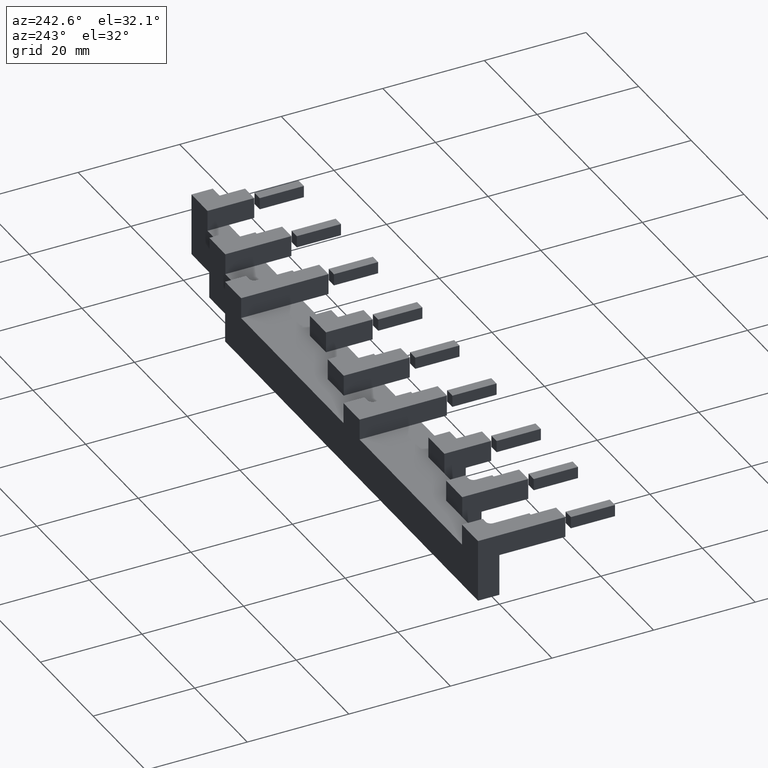
[diagram: clean part render]
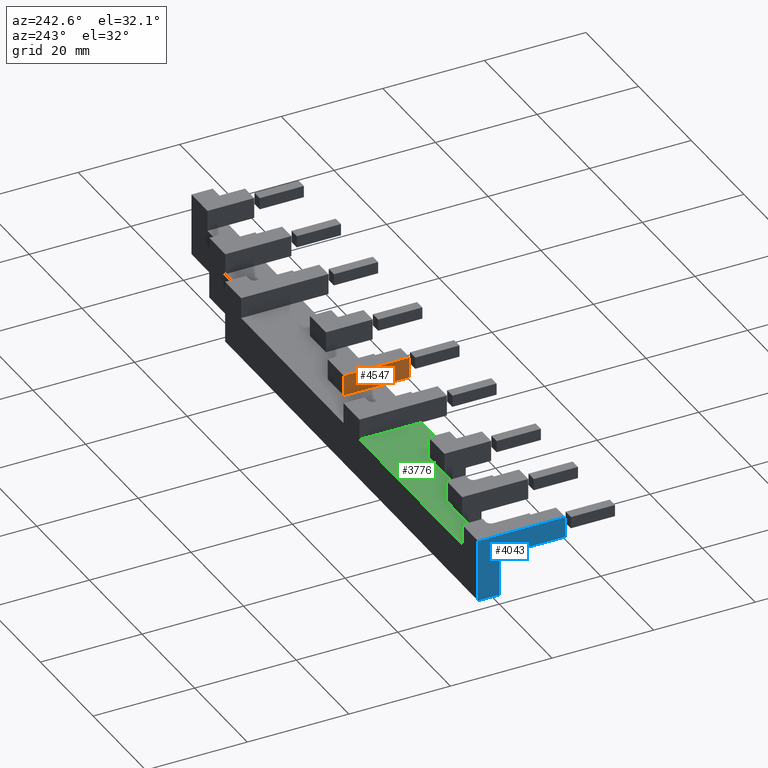
[diagram: same view with three faces highlighted in distinct colors, each labeled with its STEP entity id]
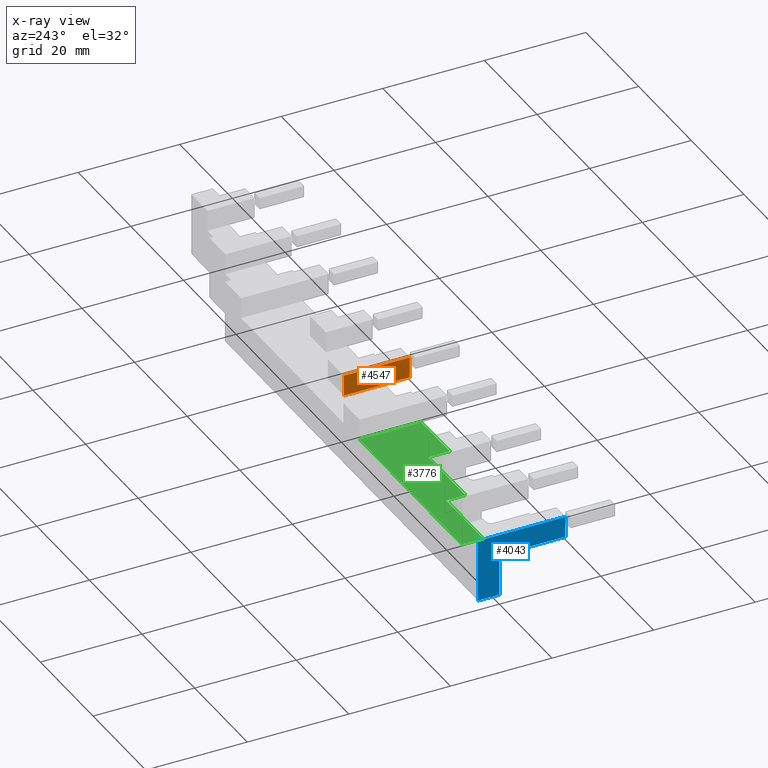
[diagram: x-ray of the same camera — body ghosted, the three highlighted faces saturated]
A machine part, auxiliary view with three faces highlighted in distinct colors.
The next image is the same camera in x-ray (body ghosted, the three faces saturated) — at least one of them is partly hidden behind the body in this view.
Their STEP definitions:

[orange] entity #4547 — the highlighted planar face has unit normal (-1, 0, 0).
#3533=CARTESIAN_POINT('',(59.099999999999895,-7.99999999999149,103.9999999999915));
#3534=VERTEX_POINT('',#3533);
#3541=CARTESIAN_POINT('',(59.099999999999795,7.815970E-013,103.9999999999915));
#3542=VERTEX_POINT('',#3541);
#3543=CARTESIAN_POINT('',(59.099999999999795,7.815970E-013,103.9999999999915));
#3544=DIRECTION('',(0.0,-1.0,0.0));
#3545=VECTOR('',#3544,7.999999999992271);
#3546=LINE('',#3543,#3545);
#3547=EDGE_CURVE('',#3542,#3534,#3546,.T.);
#4492=CARTESIAN_POINT('',(59.100000000000023,-12.999999999991037,108.0999999999915));
#4493=VERTEX_POINT('',#4492);
#4500=CARTESIAN_POINT('',(59.099999999999966,-12.999999999991037,103.9999999999915));
#4501=VERTEX_POINT('',#4500);
#4502=CARTESIAN_POINT('',(59.099999999999966,-12.999999999991037,103.9999999999915));
#4503=DIRECTION('',(0.0,0.0,1.0));
#4504=VECTOR('',#4503,4.099999999999994);
#4505=LINE('',#4502,#4504);
#4506=EDGE_CURVE('',#4501,#4493,#4505,.T.);
#4518=CARTESIAN_POINT('',(59.099999999999966,-12.999999999991037,103.9999999999915));
#4519=DIRECTION('',(-1.0,0.0,0.0));
#4520=DIRECTION('',(0.0,0.0,1.0));
#4521=AXIS2_PLACEMENT_3D('',#4518,#4519,#4520);
#4522=PLANE('',#4521);
#4523=CARTESIAN_POINT('',(59.099999999999852,7.815970E-013,108.0999999999915));
#4524=VERTEX_POINT('',#4523);
#4525=CARTESIAN_POINT('',(59.100000000000023,-12.999999999991037,108.0999999999915));
#4526=DIRECTION('',(0.0,1.0,0.0));
#4527=VECTOR('',#4526,12.999999999991818);
#4528=LINE('',#4525,#4527);
#4529=EDGE_CURVE('',#4493,#4524,#4528,.T.);
#4530=ORIENTED_EDGE('',*,*,#4529,.T.);
#4531=CARTESIAN_POINT('',(59.099999999999795,7.815970E-013,103.9999999999915));
#4532=DIRECTION('',(0.0,0.0,1.0));
#4533=VECTOR('',#4532,4.099999999999994);
#4534=LINE('',#4531,#4533);
#4535=EDGE_CURVE('',#3542,#4524,#4534,.T.);
#4536=ORIENTED_EDGE('',*,*,#4535,.F.);
#4537=ORIENTED_EDGE('',*,*,#3547,.T.);
#4538=CARTESIAN_POINT('',(59.099999999999895,-7.99999999999149,103.9999999999915));
#4539=DIRECTION('',(0.0,-1.0,0.0));
#4540=VECTOR('',#4539,4.999999999999547);
#4541=LINE('',#4538,#4540);
#4542=EDGE_CURVE('',#3534,#4501,#4541,.T.);
#4543=ORIENTED_EDGE('',*,*,#4542,.T.);
#4544=ORIENTED_EDGE('',*,*,#4506,.T.);
#4545=EDGE_LOOP('',(#4530,#4536,#4537,#4543,#4544));
#4546=FACE_OUTER_BOUND('',#4545,.T.);
#4547=ADVANCED_FACE('',(#4546),#4522,.T.);

[blue] entity #4043 — the highlighted planar face has unit normal (-1, 0, 0).
#3782=CARTESIAN_POINT('',(1.079197E-013,1.421085E-014,103.99999999999226));
#3783=VERTEX_POINT('',#3782);
#3784=CARTESIAN_POINT('',(-2.019484E-028,1.421085E-014,95.799999999992252));
#3785=VERTEX_POINT('',#3784);
#3786=CARTESIAN_POINT('',(1.079197E-013,1.436810E-014,103.99999999999227));
#3787=DIRECTION('',(0.0,0.0,-1.0));
#3788=VECTOR('',#3787,8.200000000000017);
#3789=LINE('',#3786,#3788);
#3790=EDGE_CURVE('',#3783,#3785,#3789,.T.);
#3822=CARTESIAN_POINT('',(-5.403378E-014,4.200000000007777,95.799999999992252));
#3823=VERTEX_POINT('',#3822);
#3824=CARTESIAN_POINT('',(-2.145702E-028,1.421085E-014,95.799999999992238));
#3825=DIRECTION('',(0.0,1.0,0.0));
#3826=VECTOR('',#3825,4.200000000007763);
#3827=LINE('',#3824,#3826);
#3828=EDGE_CURVE('',#3785,#3823,#3827,.T.);
#3987=CARTESIAN_POINT('',(1.017533E-013,-12.999999999991802,108.09999999999228));
#3988=VERTEX_POINT('',#3987);
#3995=CARTESIAN_POINT('',(4.779343E-014,-12.999999999991802,103.99999999999227));
#3996=VERTEX_POINT('',#3995);
#3997=CARTESIAN_POINT('',(4.779343E-014,-12.999999999991802,103.99999999999227));
#3998=DIRECTION('',(0.0,0.0,1.0));
#3999=VECTOR('',#3998,4.099999999999994);
#4000=LINE('',#3997,#3999);
#4001=EDGE_CURVE('',#3996,#3988,#4000,.T.);
#4013=CARTESIAN_POINT('',(4.779343E-014,-12.999999999991802,103.99999999999227));
#4014=DIRECTION('',(-1.0,0.0,0.0));
#4015=DIRECTION('',(0.0,0.0,1.0));
#4016=AXIS2_PLACEMENT_3D('',#4013,#4014,#4015);
#4017=PLANE('',#4016);
#4018=CARTESIAN_POINT('',(1.078457E-013,4.200000000007791,108.09999999999226));
#4019=VERTEX_POINT('',#4018);
#4020=CARTESIAN_POINT('',(1.017533E-013,-12.999999999991804,108.09999999999226));
#4021=DIRECTION('',(0.0,1.0,0.0));
#4022=VECTOR('',#4021,17.199999999999594);
#4023=LINE('',#4020,#4022);
#4024=EDGE_CURVE('',#3988,#4019,#4023,.T.);
#4025=ORIENTED_EDGE('',*,*,#4024,.T.);
#4026=CARTESIAN_POINT('',(-5.403378E-014,4.200000000007791,95.799999999992252));
#4027=DIRECTION('',(0.0,0.0,1.0));
#4028=VECTOR('',#4027,12.299999999999997);
#4029=LINE('',#4026,#4028);
#4030=EDGE_CURVE('',#3823,#4019,#4029,.T.);
#4031=ORIENTED_EDGE('',*,*,#4030,.F.);
#4032=ORIENTED_EDGE('',*,*,#3828,.F.);
#4033=ORIENTED_EDGE('',*,*,#3790,.F.);
#4034=CARTESIAN_POINT('',(5.239821E-014,1.421085E-014,103.99999999999226));
#4035=DIRECTION('',(0.0,-1.0,0.0));
#4036=VECTOR('',#4035,12.999999999991818);
#4037=LINE('',#4034,#4036);
#4038=EDGE_CURVE('',#3783,#3996,#4037,.T.);
#4039=ORIENTED_EDGE('',*,*,#4038,.T.);
#4040=ORIENTED_EDGE('',*,*,#4001,.T.);
#4041=EDGE_LOOP('',(#4025,#4031,#4032,#4033,#4039,#4040));
#4042=FACE_OUTER_BOUND('',#4041,.T.);
#4043=ADVANCED_FACE('',(#4042),#4017,.T.);

[green] entity #3776 — the highlighted planar face has unit normal (0, 0, 1).
#3672=CARTESIAN_POINT('',(52.049999999999926,2.100000000004571,103.99999999999159));
#3673=DIRECTION('',(0.0,0.0,1.0));
#3674=DIRECTION('',(1.0,0.0,0.0));
#3675=AXIS2_PLACEMENT_3D('',#3672,#3673,#3674);
#3676=PLANE('',#3675);
#3677=CARTESIAN_POINT('',(20.199999999999363,-3.799999999999216,103.99999999999201));
#3678=VERTEX_POINT('',#3677);
#3679=CARTESIAN_POINT('',(20.199999999999775,5.115908E-013,103.99999999999201));
#3680=VERTEX_POINT('',#3679);
#3681=CARTESIAN_POINT('',(20.199999999999363,-3.799999999999216,103.99999999999201));
#3682=DIRECTION('',(1.065814E-013,1.0,0.0));
#3683=VECTOR('',#3682,3.799999999999728);
#3684=LINE('',#3681,#3683);
#3685=EDGE_CURVE('',#3678,#3680,#3684,.T.);
#3686=ORIENTED_EDGE('',*,*,#3685,.F.);
#3687=CARTESIAN_POINT('',(28.199999999999754,-3.799999999999771,103.99999999999189));
#3688=VERTEX_POINT('',#3687);
#3689=CARTESIAN_POINT('',(20.19999999999937,-3.799999999999211,103.999999999992));
#3690=DIRECTION('',(1.0,0.0,0.0));
#3691=VECTOR('',#3690,8.000000000000384);
#3692=LINE('',#3689,#3691);
#3693=EDGE_CURVE('',#3678,#3688,#3692,.T.);
#3694=ORIENTED_EDGE('',*,*,#3693,.T.);
#3695=CARTESIAN_POINT('',(34.299999999999777,-3.7999999999997,103.99999999999181));
#3696=VERTEX_POINT('',#3695);
#3697=CARTESIAN_POINT('',(28.199999999999754,-3.799999999999771,103.99999999999189));
#3698=DIRECTION('',(1.0,0.0,0.0));
#3699=VECTOR('',#3698,6.100000000000023);
#3700=LINE('',#3697,#3699);
#3701=EDGE_CURVE('',#3688,#3696,#3700,.T.);
#3702=ORIENTED_EDGE('',*,*,#3701,.T.);
#3703=CARTESIAN_POINT('',(34.299999999999827,-7.999999999999703,103.99999999999181));
#3704=VERTEX_POINT('',#3703);
#3705=CARTESIAN_POINT('',(34.299999999999777,-3.7999999999997,103.99999999999181));
#3706=DIRECTION('',(0.0,-1.0,0.0));
#3707=VECTOR('',#3706,4.200000000000004);
#3708=LINE('',#3705,#3707);
#3709=EDGE_CURVE('',#3696,#3704,#3708,.T.);
#3710=ORIENTED_EDGE('',*,*,#3709,.T.);
#3711=CARTESIAN_POINT('',(45.000000000000043,-7.999999999991674,103.99999999999167));
#3712=VERTEX_POINT('',#3711);
#3713=CARTESIAN_POINT('',(34.299999999999784,-7.999999999991815,103.99999999999181));
#3714=DIRECTION('',(1.0,0.0,0.0));
#3715=VECTOR('',#3714,10.700000000000244);
#3716=LINE('',#3713,#3715);
#3717=EDGE_CURVE('',#3704,#3712,#3716,.T.);
#3718=ORIENTED_EDGE('',*,*,#3717,.T.);
#3719=CARTESIAN_POINT('',(45.000000000000064,4.200000000008374,103.99999999999167));
#3720=VERTEX_POINT('',#3719);
#3721=CARTESIAN_POINT('',(45.000000000000064,4.200000000008374,103.99999999999167));
#3722=DIRECTION('',(0.0,-1.0,0.0));
#3723=VECTOR('',#3722,12.200000000000049);
#3724=LINE('',#3721,#3723);
#3725=EDGE_CURVE('',#3720,#3712,#3724,.T.);
#3726=ORIENTED_EDGE('',*,*,#3725,.F.);
#3727=CARTESIAN_POINT('',(6.099999999999723,4.200000000007862,103.99999999999218));
#3728=VERTEX_POINT('',#3727);
#3729=CARTESIAN_POINT('',(45.000000000000064,4.200000000008369,103.99999999999169));
#3730=DIRECTION('',(-1.0,0.0,0.0));
#3731=VECTOR('',#3730,38.90000000000034);
#3732=LINE('',#3729,#3731);
#3733=EDGE_CURVE('',#3720,#3728,#3732,.T.);
#3734=ORIENTED_EDGE('',*,*,#3733,.T.);
#3735=CARTESIAN_POINT('',(6.099999999999789,0.099999999999554,103.99999999999218));
#3736=VERTEX_POINT('',#3735);
#3737=CARTESIAN_POINT('',(6.099999999999789,0.099999999999554,103.99999999999218));
#3738=DIRECTION('',(0.0,1.0,0.0));
#3739=VECTOR('',#3738,4.100000000008309);
#3740=LINE('',#3737,#3739);
#3741=EDGE_CURVE('',#3736,#3728,#3740,.T.);
#3742=ORIENTED_EDGE('',*,*,#3741,.F.);
#3743=CARTESIAN_POINT('',(4.999999999999994,0.09999999999954,103.99999999999221));
#3744=VERTEX_POINT('',#3743);
#3745=CARTESIAN_POINT('',(4.999999999999994,0.09999999999954,103.99999999999221));
#3746=DIRECTION('',(1.0,0.0,0.0));
#3747=VECTOR('',#3746,1.099999999999795);
#3748=LINE('',#3745,#3747);
#3749=EDGE_CURVE('',#3744,#3736,#3748,.T.);
#3750=ORIENTED_EDGE('',*,*,#3749,.F.);
#3751=CARTESIAN_POINT('',(4.564110105647056,7.105427E-014,103.99999999999221));
#3752=VERTEX_POINT('',#3751);
#3753=CARTESIAN_POINT('',(5.000000000000007,-0.900000000000461,103.99999999999221));
#3754=DIRECTION('',(-6.561292E-015,6.561292E-015,-1.0));
#3755=DIRECTION('',(-0.707106781186547,0.707106781186549,9.279068E-015));
#3756=AXIS2_PLACEMENT_3D('',#3753,#3754,#3755);
#3757=CIRCLE('',#3756,1.0);
#3758=EDGE_CURVE('',#3752,#3744,#3757,.T.);
#3759=ORIENTED_EDGE('',*,*,#3758,.F.);
#3760=CARTESIAN_POINT('',(14.099999999999792,1.989520E-013,103.9999999999921));
#3761=VERTEX_POINT('',#3760);
#3762=CARTESIAN_POINT('',(4.564110105647053,7.120623E-014,103.99999999999221));
#3763=DIRECTION('',(1.0,0.0,0.0));
#3764=VECTOR('',#3763,9.535889894352735);
#3765=LINE('',#3762,#3764);
#3766=EDGE_CURVE('',#3752,#3761,#3765,.T.);
#3767=ORIENTED_EDGE('',*,*,#3766,.T.);
#3768=CARTESIAN_POINT('',(20.199999999999775,5.115908E-013,103.99999999999201));
#3769=DIRECTION('',(-1.0,0.0,0.0));
#3770=VECTOR('',#3769,6.099999999999982);
#3771=LINE('',#3768,#3770);
#3772=EDGE_CURVE('',#3680,#3761,#3771,.T.);
#3773=ORIENTED_EDGE('',*,*,#3772,.F.);
#3774=EDGE_LOOP('',(#3686,#3694,#3702,#3710,#3718,#3726,#3734,#3742,#3750,#3759,#3767,#3773));
#3775=FACE_OUTER_BOUND('',#3774,.T.);
#3776=ADVANCED_FACE('',(#3775),#3676,.T.);